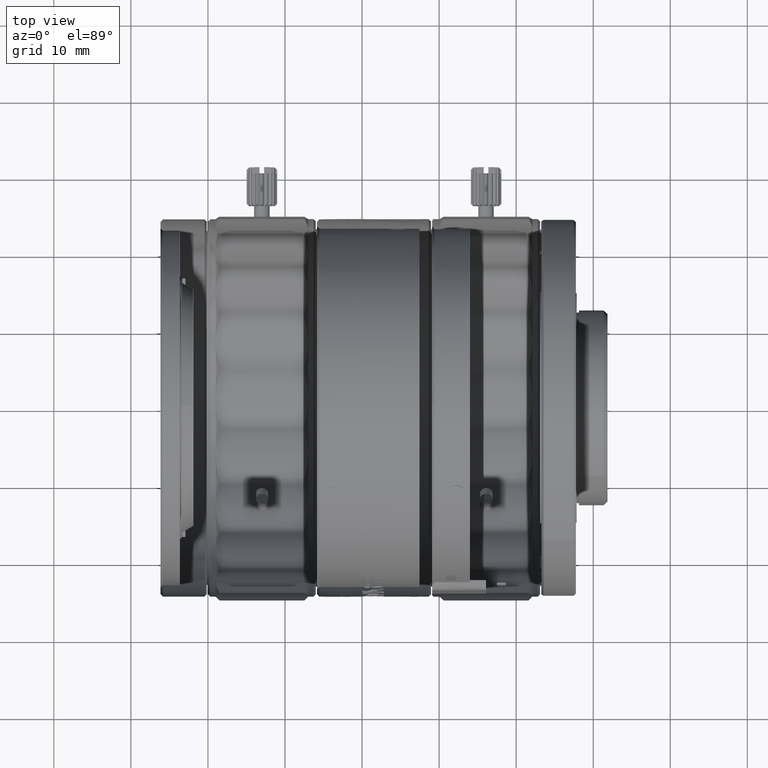
[diagram: clean part render]
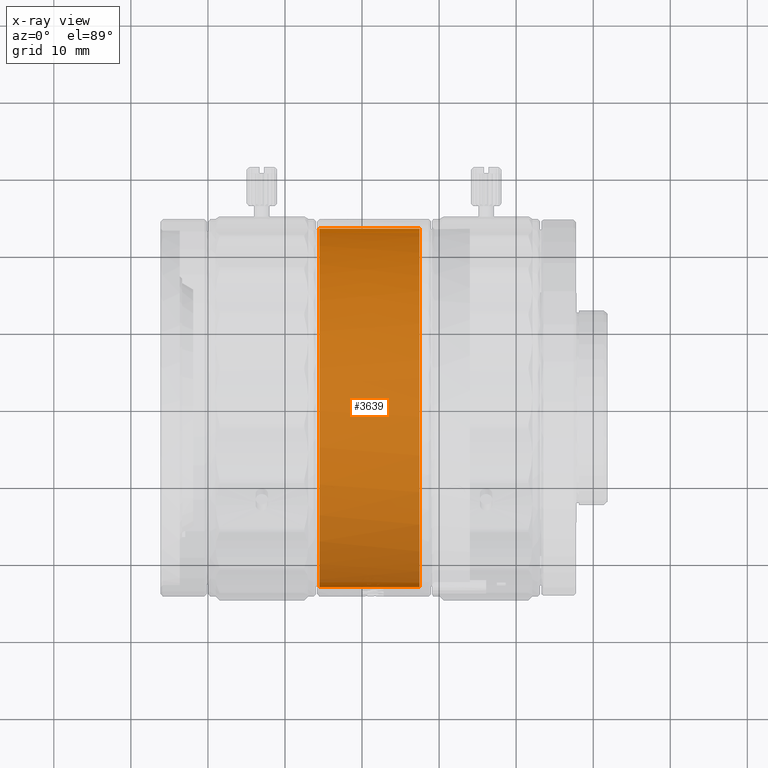
[diagram: x-ray — body ghosted, one internal face saturated and labeled with its STEP entity id]
A machine part, top view, then the same camera in x-ray: the body is ghosted and one INTERNAL B-rep face — a face not visible from any outside direction — is saturated and labeled: STEP entity #3639.
In plain terms, the highlighted face is a freeform B-spline surface patch.
Its self-contained STEP definition (entity closure, byte-faithful):
#687 = CARTESIAN_POINT ( 'NONE',  ( 27.45000000000000284, -22.06300011819200790, -7.490383770891987147 ) ) ;
#3213 = CARTESIAN_POINT ( 'NONE',  ( 14.45000000000000107, -23.24999999999998934, -46.50000000000000000 ) ) ;
#3639 = ADVANCED_FACE ( 'NONE', ( #52248 ), #25069, .F. ) ;
#3953 = CARTESIAN_POINT ( 'NONE',  ( 27.45000000000000284, 23.10036712473602094, -3.042180376597933389 ) ) ;
#4234 = CARTESIAN_POINT ( 'NONE',  ( 27.45000000000000284, -23.24999998846800864, -1.522932344296003215 ) ) ;
#4815 = CARTESIAN_POINT ( 'NONE',  ( 27.44999999999999929, 23.24999999615599933, -6.358206283975270048E-09 ) ) ;
#5106 = CARTESIAN_POINT ( 'NONE',  ( 27.44999999999999929, -10.30439582678000932, -20.89739817932799681 ) ) ;
#5509 = ORIENTED_EDGE ( 'NONE', *, *, #17858, .F. ) ;
#6508 = CARTESIAN_POINT ( 'NONE',  ( 14.45000000000015028, 13.61953466750311215, -23.25000000558681990 ) ) ;
#6745 = CARTESIAN_POINT ( 'NONE',  ( 27.44999999999999929, -23.25000000000000000, -5.694607616035192278E-15 ) ) ;
#8171 = CARTESIAN_POINT ( 'NONE',  ( 14.44999999999999929, -23.25000000000000000, -4.373141008298309783E-09 ) ) ;
#8369 = CARTESIAN_POINT ( 'NONE',  ( 27.44999999999999929, -23.24999999615599933, -1.391794357262609951E-09 ) ) ;
#8477 = VERTEX_POINT ( 'NONE', #8171 ) ;
#8660 = CARTESIAN_POINT ( 'NONE',  ( 27.44999999999999929, -1.522932344295983897, -23.24999998846799798 ) ) ;
#8946 = CARTESIAN_POINT ( 'NONE',  ( 27.45000000000000284, 7.490383770891949844, -22.06300011819201501 ) ) ;
#10045 = ORIENTED_EDGE ( 'NONE', *, *, #46225, .T. ) ;
#12604 = CARTESIAN_POINT ( 'NONE',  ( 14.44999999999999929, -23.25000000000000000, -5.694607616035192278E-15 ) ) ;
#13623 = CARTESIAN_POINT ( 'NONE',  ( 27.44999999999999574, -15.36335689341198751, -17.51710844131600453 ) ) ;
#13825 = CARTESIAN_POINT ( 'NONE',  ( 27.44999999999999929, -23.24999999615599933, -1.391794357262609951E-09 ) ) ;
#13910 = CARTESIAN_POINT ( 'NONE',  ( 27.45000000000000284, 3.042180376597980906, -23.10036718748000695 ) ) ;
#14321 = EDGE_CURVE ( 'NONE', #21576, #8477, #42902, .T. ) ;
#16720 = CARTESIAN_POINT ( 'NONE',  ( 27.44999999999999929, 23.25000000000000000, 2.847303808017596139E-15 ) ) ;
#16981 = CARTESIAN_POINT ( 'NONE',  ( 14.44999999999999929, -3.376859632939564632E-09, -23.25000000000000000 ) ) ;
#17754 = CARTESIAN_POINT ( 'NONE',  ( 27.45000000000000639, -17.51710844131601519, -15.36335689341198751 ) ) ;
#17858 = EDGE_CURVE ( 'NONE', #36956, #26346, #45375, .T. ) ;
#18046 = CARTESIAN_POINT ( 'NONE',  ( 27.45000000000000284, -20.17776434176800393, -11.65073599874799193 ) ) ;
#18631 = CARTESIAN_POINT ( 'NONE',  ( 27.45000000000000639, -6.029519595286008560, -22.50614844139199988 ) ) ;
#19720 = B_SPLINE_CURVE_WITH_KNOTS ( 'NONE', 1,
 ( #13825, #25922 ),
 .UNSPECIFIED., .F., .F.,
 ( 2, 2 ),
 ( 0.0000000000000000000, 1.000000000000000000 ),
 .UNSPECIFIED. ) ;
#20014 = CARTESIAN_POINT ( 'NONE',  ( 14.44999999999999929, 23.25000000000000000, -7.947758847623800761E-09 ) ) ;
#20183 = B_SPLINE_CURVE_WITH_KNOTS ( 'NONE', 1,
 ( #44232, #20451 ),
 .UNSPECIFIED., .F., .F.,
 ( 2, 2 ),
 ( 0.0000000000000000000, 1.000000000000000000 ),
 .UNSPECIFIED. ) ;
#20451 = CARTESIAN_POINT ( 'NONE',  ( 14.44999999999999929, 23.25000000000000000, -7.947758847623800761E-09 ) ) ;
#21576 = VERTEX_POINT ( 'NONE', #55973 ) ;
#21875 = CARTESIAN_POINT ( 'NONE',  ( 27.45000000000000284, 20.89739817932798971, -10.30439582678003063 ) ) ;
#22163 = CARTESIAN_POINT ( 'NONE',  ( 27.44999999999999218, 17.51710844131602229, -15.36335689341196975 ) ) ;
#22444 = CARTESIAN_POINT ( 'NONE',  ( 27.45000000000000639, -23.10036718748000695, -3.042180376597995561 ) ) ;
#25069 =( BOUNDED_SURFACE ( )  B_SPLINE_SURFACE ( 1, 3, ( 
 ( #16720, #43166, #38185, #6745 ),
 ( #47872, #43466, #3213, #12604 ) ),
 .UNSPECIFIED., .F., .F., .F. ) 
 B_SPLINE_SURFACE_WITH_KNOTS ( ( 2, 2 ),
 ( 4, 4 ),
 ( 0.0000000000000000000, 1.000000000000000000 ),
 ( 0.0000000000000000000, 1.000000000000000000 ),
 .UNSPECIFIED. ) 
 GEOMETRIC_REPRESENTATION_ITEM ( )  RATIONAL_B_SPLINE_SURFACE ( (
 ( 1.000000000000000000, 0.3333333333333334259, 0.3333333333333334259, 1.000000000000000000),
 ( 1.000000000000000000, 0.3333333333333334259, 0.3333333333333334259, 1.000000000000000000) ) ) 
 REPRESENTATION_ITEM ( '' )  SURFACE ( )  );
#25793 = CARTESIAN_POINT ( 'NONE',  ( 14.45000000000011831, -23.24999999476070300, -13.61953467518562277 ) ) ;
#25922 = CARTESIAN_POINT ( 'NONE',  ( 14.44999999999999929, -23.25000000000000000, -4.373141008298309783E-09 ) ) ;
#26183 = ORIENTED_EDGE ( 'NONE', *, *, #35916, .F. ) ;
#26346 = VERTEX_POINT ( 'NONE', #46052 ) ;
#26577 = CARTESIAN_POINT ( 'NONE',  ( 27.44999999999999574, 22.50614844139198212, -6.029519595286063627 ) ) ;
#27154 = CARTESIAN_POINT ( 'NONE',  ( 27.44999999999999574, 15.36335689341196797, -17.51710844131601519 ) ) ;
#27436 = CARTESIAN_POINT ( 'NONE',  ( 27.44999999999999929, 23.24999998846800509, -1.522932344295931939 ) ) ;
#30894 = VERTEX_POINT ( 'NONE', #56723 ) ;
#31849 = CARTESIAN_POINT ( 'NONE',  ( 27.44999999999998863, 10.30439582678004484, -20.89739817932797905 ) ) ;
#34489 = CARTESIAN_POINT ( 'NONE',  ( 27.44999999999999929, -23.24999999615599933, -1.391794357262609951E-09 ) ) ;
#35403 = CARTESIAN_POINT ( 'NONE',  ( 27.45000000000000284, 1.522932344295985452, -23.24999998846800153 ) ) ;
#35759 = EDGE_CURVE ( 'NONE', #26346, #30894, #20183, .T. ) ;
#35916 = EDGE_CURVE ( 'NONE', #30894, #21576, #53720, .T. ) ;
#35972 = CARTESIAN_POINT ( 'NONE',  ( 27.45000000000001350, -18.48557259093600891, -14.18327985100401811 ) ) ;
#36258 = CARTESIAN_POINT ( 'NONE',  ( 27.44999999999999574, -20.89739817932800392, -10.30439582678000754 ) ) ;
#36549 = CARTESIAN_POINT ( 'NONE',  ( 27.44999999999999929, 14.18327985100400213, -18.48557259093600535 ) ) ;
#36956 = VERTEX_POINT ( 'NONE', #34489 ) ;
#37946 = CARTESIAN_POINT ( 'NONE',  ( 14.44999999999999929, -3.376859632939564632E-09, -23.25000000000000000 ) ) ;
#38185 = CARTESIAN_POINT ( 'NONE',  ( 27.44999999999999929, -23.24999999999998934, -46.50000000000000000 ) ) ;
#40382 = CARTESIAN_POINT ( 'NONE',  ( 27.45000000000000284, 18.48557259093600535, -14.18327991374799524 ) ) ;
#40667 = CARTESIAN_POINT ( 'NONE',  ( 27.45000000000000639, -7.490383770891999582, -22.06300011819201146 ) ) ;
#40953 = CARTESIAN_POINT ( 'NONE',  ( 27.44999999999999218, -22.50614837864799966, -6.029519595286001454 ) ) ;
#41956 = ORIENTED_EDGE ( 'NONE', *, *, #14321, .F. ) ;
#42356 = ORIENTED_EDGE ( 'NONE', *, *, #35759, .F. ) ;
#42902 =( BOUNDED_CURVE ( )  B_SPLINE_CURVE ( 3, ( #16981, #48135, #25793, #56328 ),
 .UNSPECIFIED., .F., .T. ) 
 B_SPLINE_CURVE_WITH_KNOTS ( ( 4, 4 ),
 ( -1.570796326794895004, 0.0000000000000000000 ),
 .UNSPECIFIED. ) 
 CURVE ( )  GEOMETRIC_REPRESENTATION_ITEM ( )  RATIONAL_B_SPLINE_CURVE ( ( 1.000000000000000000, 0.8047378543117238436, 0.8047378543117238436, 1.000000000000000000 ) ) 
 REPRESENTATION_ITEM ( '' )  );
#43166 = CARTESIAN_POINT ( 'NONE',  ( 27.44999999999999929, 23.25000000000000711, -46.49999999999999289 ) ) ;
#43466 = CARTESIAN_POINT ( 'NONE',  ( 14.45000000000000107, 23.25000000000000711, -46.49999999999999289 ) ) ;
#44208 = CARTESIAN_POINT ( 'NONE',  ( 27.45000000000000639, -3.042180376597989344, -23.10036712473600673 ) ) ;
#44232 = CARTESIAN_POINT ( 'NONE',  ( 27.44999999999999929, 23.24999999615599933, -6.358206283975270048E-09 ) ) ;
#44787 = CARTESIAN_POINT ( 'NONE',  ( 27.45000000000000284, -11.65073593600397039, -20.17776434176801814 ) ) ;
#45375 = B_SPLINE_CURVE_WITH_KNOTS ( 'NONE', 3,
 ( #8369, #4234, #22444, #40953, #687, #36258, #18046, #35972, #17754, #13623, #54148, #44787, #5106, #40667, #18631, #44208, #8660, #35403, #13910, #49467, #8946, #31849, #49749, #36549, #27154, #22163, #40382, #53570, #21875, #54427, #26577, #3953, #27436, #4815 ),
 .UNSPECIFIED., .F., .F.,
 ( 4, 2, 2, 2, 2, 2, 2, 2, 2, 2, 2, 2, 2, 2, 2, 2, 4 ),
 ( 0.0000000000000000000, 0.1963495408493620697, 0.3926990816987241395, 0.5890486225480863203, 0.7853981633974482790, 0.9817477042468106818, 1.178097245096173085, 1.374446785945535598, 1.570796326794898112, 1.767145867644260626, 1.963495408493622696, 2.159844949342985210, 2.356194490192347057, 2.552544031041708905, 2.748893571891071197, 2.945243112740433045, 3.141592653589795336 ),
 .UNSPECIFIED. ) ;
#46052 = CARTESIAN_POINT ( 'NONE',  ( 27.44999999999999929, 23.24999999615599933, -6.358206283975270048E-09 ) ) ;
#46225 = EDGE_CURVE ( 'NONE', #36956, #8477, #19720, .T. ) ;
#47872 = CARTESIAN_POINT ( 'NONE',  ( 14.44999999999999929, 23.25000000000000000, 2.847303808017596139E-15 ) ) ;
#48135 = CARTESIAN_POINT ( 'NONE',  ( 14.45000000000014673, -13.61953467577888155, -23.24999999441317300 ) ) ;
#49467 = CARTESIAN_POINT ( 'NONE',  ( 27.44999999999999929, 6.029519595286015665, -22.50614837864799966 ) ) ;
#49749 = CARTESIAN_POINT ( 'NONE',  ( 27.45000000000000284, 11.65073599874799548, -20.17776434176800393 ) ) ;
#51724 = CARTESIAN_POINT ( 'NONE',  ( 14.45000000000011653, 23.24999999720658295, -13.61953468180906945 ) ) ;
#52248 = FACE_OUTER_BOUND ( 'NONE', #56437, .T. ) ;
#53570 = CARTESIAN_POINT ( 'NONE',  ( 27.44999999999999929, 20.17776434176799683, -11.65073593600400415 ) ) ;
#53720 =( BOUNDED_CURVE ( )  B_SPLINE_CURVE ( 3, ( #20014, #51724, #6508, #37946 ),
 .UNSPECIFIED., .F., .F. ) 
 B_SPLINE_CURVE_WITH_KNOTS ( ( 4, 4 ),
 ( -1.570796326794895004, 0.0000000000000000000 ),
 .UNSPECIFIED. ) 
 CURVE ( )  GEOMETRIC_REPRESENTATION_ITEM ( )  RATIONAL_B_SPLINE_CURVE ( ( 1.000000000000000000, 0.8047378540760218302, 0.8047378540760218302, 1.000000000000000000 ) ) 
 REPRESENTATION_ITEM ( '' )  );
#54148 = CARTESIAN_POINT ( 'NONE',  ( 27.44999999999999929, -14.18327991374802721, -18.48557259093597693 ) ) ;
#54427 = CARTESIAN_POINT ( 'NONE',  ( 27.44999999999998863, 22.06300011819202211, -7.490383770891964943 ) ) ;
#55973 = CARTESIAN_POINT ( 'NONE',  ( 14.44999999999999929, -3.376859632939564632E-09, -23.25000000000000000 ) ) ;
#56328 = CARTESIAN_POINT ( 'NONE',  ( 14.44999999999999929, -23.25000000000000000, -4.373141008298309783E-09 ) ) ;
#56437 = EDGE_LOOP ( 'NONE', ( #42356, #5509, #10045, #41956, #26183 ) ) ;
#56723 = CARTESIAN_POINT ( 'NONE',  ( 14.44999999999999929, 23.25000000000000000, -7.947758847623800761E-09 ) ) ;